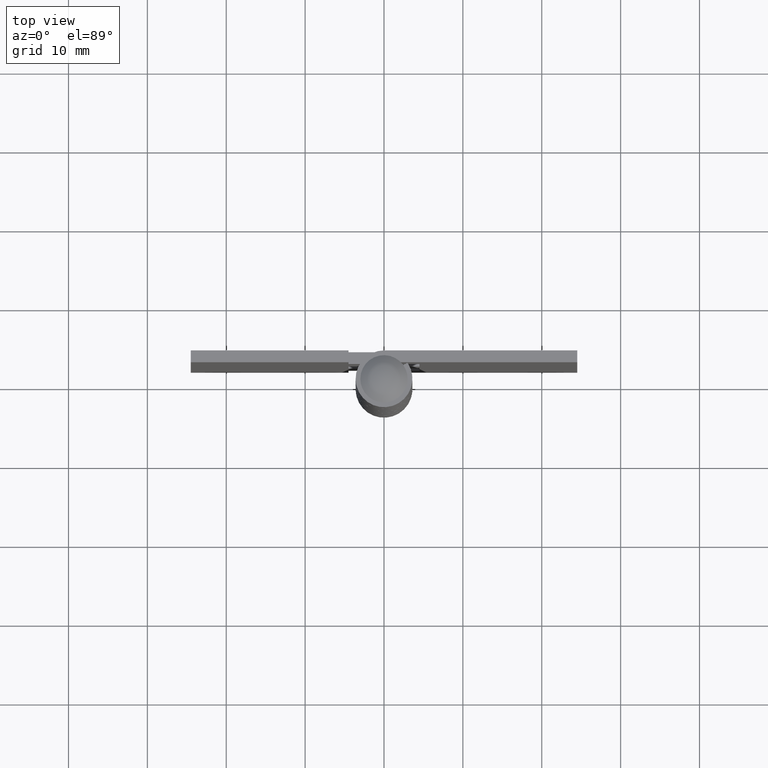
[diagram: clean part render]
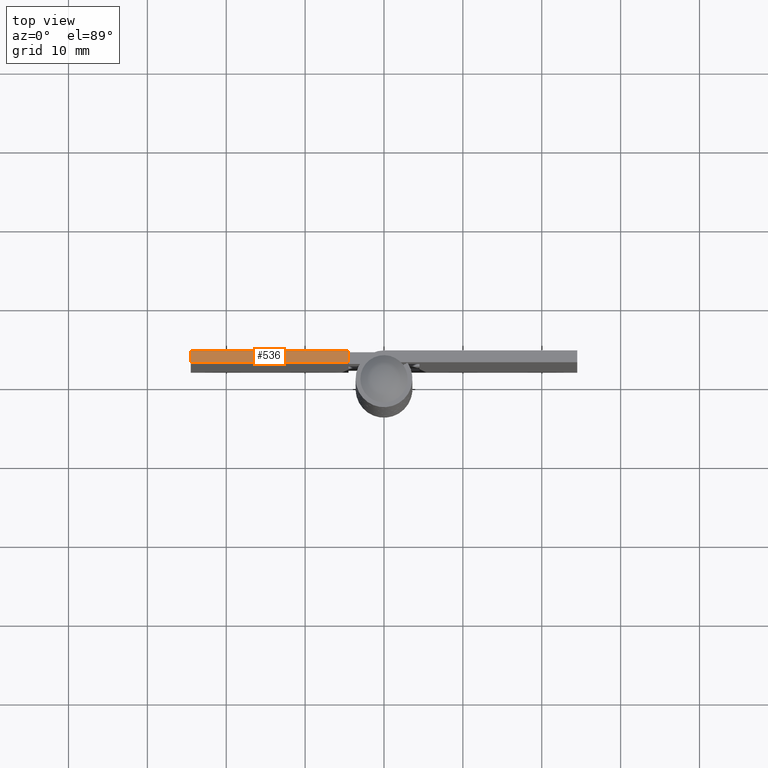
[diagram: same view with one face highlighted and labeled with its STEP entity id]
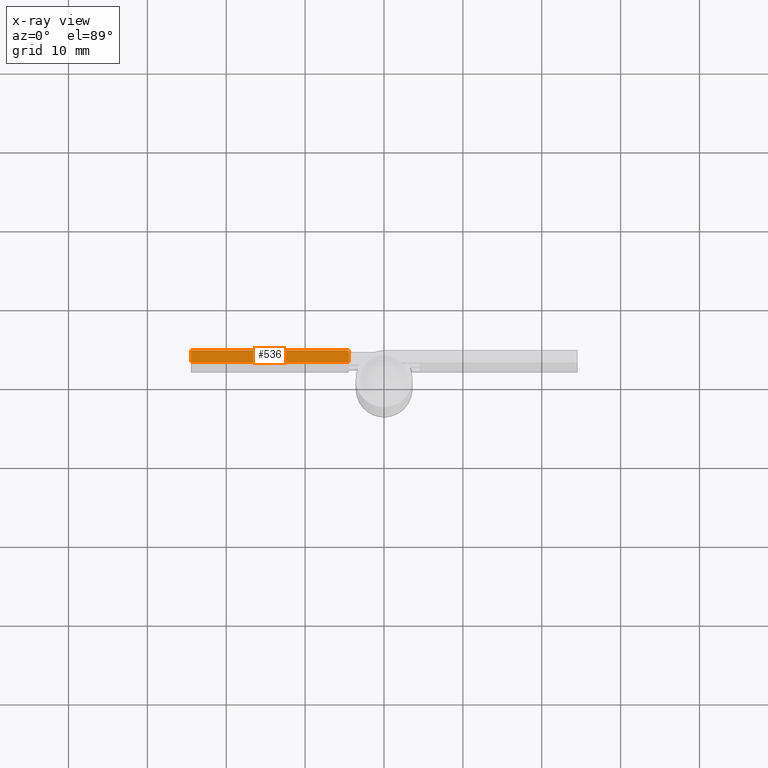
[diagram: x-ray of the same camera — body ghosted, the highlighted face saturated]
A machine part, top view. The second image highlights one B-rep face of the part: STEP entity #536.
The next image is the same camera in x-ray: the body ghosted, the highlighted face saturated — about 0% of this face is hidden behind the body in this view.
In plain terms, the highlighted face is a freeform B-spline surface patch.
Its self-contained STEP definition (entity closure, byte-faithful):
#19=CARTESIAN_POINT('',(-4.500000000000000,3.599998000000000,76.000008000000093));
#20=VERTEX_POINT('',#19);
#26=CARTESIAN_POINT('',(-4.500000000000000,2.099997999999935,76.000008000000093));
#27=VERTEX_POINT('',#26);
#28=CARTESIAN_POINT('',(-4.500000000000000,2.099997999999935,76.000008000000093));
#29=CARTESIAN_POINT('',(-4.500000000000000,3.599998000000000,76.000008000000093));
#30=QUASI_UNIFORM_CURVE('',1,(#28,#29),.UNSPECIFIED.,.F.,.U.);
#31=EDGE_CURVE('',#27,#20,#30,.T.);
#509=CARTESIAN_POINT('',(-25.499008360836051,2.025073002907223,76.000008000000093));
#510=CARTESIAN_POINT('',(-3.500999102721881,2.025073002907223,76.000008000000093));
#511=CARTESIAN_POINT('',(-25.499008360836051,3.674923037325848,76.000008000000093));
#512=CARTESIAN_POINT('',(-3.500999102721881,3.674923037325848,76.000008000000093));
#513=B_SPLINE_SURFACE_WITH_KNOTS('',1,1,((#509,#511),(#510,#512)),.UNSPECIFIED.,.F.,.F.,.U.,(2,2),(2,2),(0.0,21.998009258114170),(0.041708334948495,0.958291687403247),.UNSPECIFIED.);
#514=CARTESIAN_POINT('',(-24.500007999999951,2.099997999999970,76.000008000000093));
#515=VERTEX_POINT('',#514);
#516=CARTESIAN_POINT('',(-24.500007999999951,2.099997999999970,76.000008000000093));
#517=CARTESIAN_POINT('',(-4.500000000000000,2.099997999999935,76.000008000000093));
#518=QUASI_UNIFORM_CURVE('',1,(#516,#517),.UNSPECIFIED.,.F.,.U.);
#519=EDGE_CURVE('',#515,#27,#518,.T.);
#520=ORIENTED_EDGE('',*,*,#519,.T.);
#521=ORIENTED_EDGE('',*,*,#31,.T.);
#522=CARTESIAN_POINT('',(-24.500007999999951,3.599998000000000,76.000008000000093));
#523=VERTEX_POINT('',#522);
#524=CARTESIAN_POINT('',(-4.500000000000000,3.599998000000000,76.000008000000093));
#525=CARTESIAN_POINT('',(-24.500007999999951,3.599998000000000,76.000008000000093));
#526=QUASI_UNIFORM_CURVE('',1,(#524,#525),.UNSPECIFIED.,.F.,.U.);
#527=EDGE_CURVE('',#20,#523,#526,.T.);
#528=ORIENTED_EDGE('',*,*,#527,.T.);
#529=CARTESIAN_POINT('',(-24.500007999999951,3.599998000000000,76.000008000000093));
#530=CARTESIAN_POINT('',(-24.500007999999951,2.099997999999970,76.000008000000093));
#531=QUASI_UNIFORM_CURVE('',1,(#529,#530),.UNSPECIFIED.,.F.,.U.);
#532=EDGE_CURVE('',#523,#515,#531,.T.);
#533=ORIENTED_EDGE('',*,*,#532,.T.);
#534=EDGE_LOOP('',(#520,#521,#528,#533));
#535=FACE_OUTER_BOUND('',#534,.T.);
#536=ADVANCED_FACE('',(#535),#513,.T.);